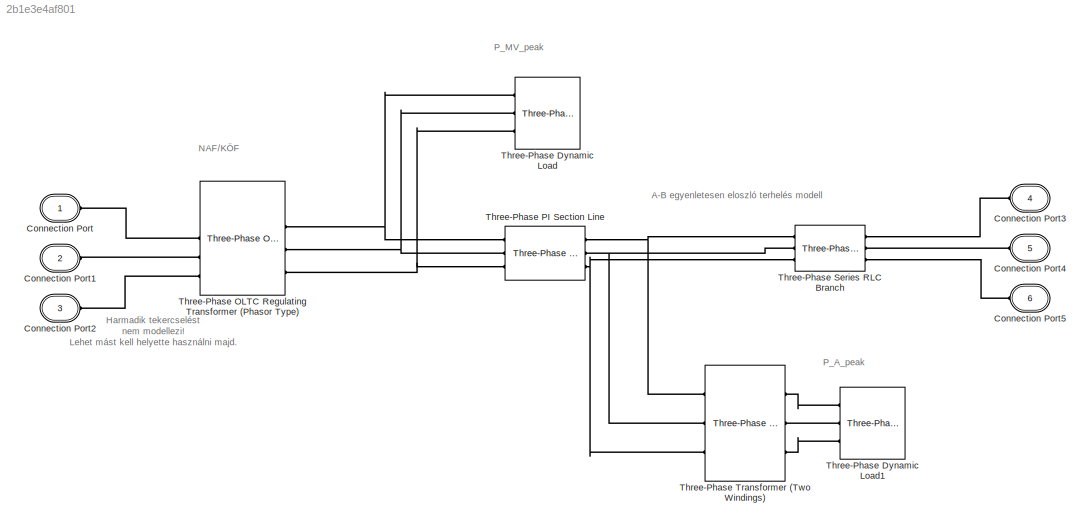
MODEL slx_2b1e3e4af801
KIND model
CONFIG AbsTol = auto
CONFIG EnableMultiTasking = off
CONFIG FixedStep = auto
CONFIG MaxStep = auto
CONFIG MinStep = auto
CONFIG RelTol = 1e-3
CONFIG SampleTimeConstraint = Unconstrained
CONFIG Solver = VariableStepAuto
CONFIG SolverName = VariableStepAuto
CONFIG StartTime = 0.0
CONFIG StopTime = 10.0
BLOCK [PMIOPort] Connection Port
  Side = Left
  Tag = PMCPort
BLOCK [PMIOPort] Connection Port1
  Port = 2
  Side = Left
  Tag = PMCPort
BLOCK [PMIOPort] Connection Port2
  Port = 3
  Side = Left
  Tag = PMCPort
BLOCK [PMIOPort] Connection Port3
  Port = 4
  Side = Left
  Tag = PMCPort
BLOCK [PMIOPort] Connection Port4
  Port = 5
  Side = Left
  Tag = PMCPort
BLOCK [PMIOPort] Connection Port5
  Port = 6
  Side = Left
  Tag = PMCPort
BLOCK [Reference] Three-Phase Dynamic Load  REF=powerlib/Elements/Three-Phase
Dynamic Load
  Ports = [0, 1, 0, 0, 0, 3]
  SourceBlock = powerlib/Elements/Three-Phase\nDynamic Load
  SourceProductBaseCode = PS
  SourceType = Three-Phase Dynamic Load
BLOCK [Reference] Three-Phase Dynamic Load1  REF=powerlib/Elements/Three-Phase
Dynamic Load
  Ports = [0, 1, 0, 0, 0, 3]
  SourceBlock = powerlib/Elements/Three-Phase\nDynamic Load
  SourceProductBaseCode = PS
  SourceType = Three-Phase Dynamic Load
BLOCK [Reference] Three-Phase OLTC Regulating Transformer (Phasor Type)  REF=factslib/Transformers/Three-Phase OLTC
Regulating Transformer
(Phasor Type)
  Ports = [2, 1, 0, 0, 0, 3, 3]
  SourceBlock = factslib/Transformers/Three-Phase OLTC\nRegulating Transformer\n(Phasor Type)
  SourceProductBaseCode = PS
  SourceType = Three-Phase OLTC Regulating Transformer (Phasor Type)
BLOCK [Reference] Three-Phase PI Section Line  REF=powerlib/Elements/Three-Phase
PI Section Line
  AttributesFormatString = \n
  Ports = [0, 0, 0, 0, 0, 3, 3]
  SourceBlock = powerlib/Elements/Three-Phase\nPI Section Line
  SourceProductBaseCode = PS
  SourceType = Three-Phase PI Section Line
BLOCK [Reference] Three-Phase Series RLC Branch  REF=powerlib/Elements/Three-Phase
Series RLC Branch
  AttributesFormatString = \n
  Ports = [0, 0, 0, 0, 0, 3, 3]
  SourceBlock = powerlib/Elements/Three-Phase\nSeries RLC Branch
  SourceProductBaseCode = PS
  SourceType = Three-Phase Series RLC Branch
BLOCK [Reference] Three-Phase Transformer (Two Windings)  REF=powerlib/Elements/Three-Phase
Transformer
(Two Windings)
  Ports = [0, 0, 0, 0, 0, 3, 3]
  SourceBlock = powerlib/Elements/Three-Phase\nTransformer\n(Two Windings)
  SourceProductBaseCode = PS
  SourceType = Three-Phase Transformer (Two Windings)
ANNOTATION (root): Harmadik tekercselést nem modellezi! Lehet mást kell helyette használni majd.
ANNOTATION (root): P_A_peak
ANNOTATION (root): A-B egyenletesen eloszló terhelés modell
ANNOTATION (root): NAF/KÖF
ANNOTATION (root): P_MV_peak
PLINE Connection Port1:RConn1 -- Three-Phase OLTC Regulating Transformer (Phasor Type):LConn2
PLINE Connection Port2:RConn1 -- Three-Phase OLTC Regulating Transformer (Phasor Type):LConn3
PLINE Connection Port3:RConn1 -- Three-Phase Series RLC Branch:RConn1
PLINE Connection Port4:RConn1 -- Three-Phase Series RLC Branch:RConn2
PLINE Connection Port5:RConn1 -- Three-Phase Series RLC Branch:RConn3
PLINE Connection Port:RConn1 -- Three-Phase OLTC Regulating Transformer (Phasor Type):LConn1
PLINE Three-Phase Dynamic Load1:LConn1 -- Three-Phase Transformer (Two Windings):RConn1
PLINE Three-Phase Dynamic Load1:LConn2 -- Three-Phase Transformer (Two Windings):RConn2
PLINE Three-Phase Dynamic Load1:LConn3 -- Three-Phase Transformer (Two Windings):RConn3
PNET net1: Three-Phase Dynamic Load:LConn1 -- Three-Phase OLTC Regulating Transformer (Phasor Type):RConn1 -- Three-Phase PI Section Line:LConn1
PNET net2: Three-Phase Dynamic Load:LConn2 -- Three-Phase OLTC Regulating Transformer (Phasor Type):RConn2 -- Three-Phase PI Section Line:LConn2
PNET net3: Three-Phase Dynamic Load:LConn3 -- Three-Phase OLTC Regulating Transformer (Phasor Type):RConn3 -- Three-Phase PI Section Line:LConn3
PNET net4: Three-Phase PI Section Line:RConn1 -- Three-Phase Series RLC Branch:LConn1 -- Three-Phase Transformer (Two Windings):LConn1
PNET net5: Three-Phase PI Section Line:RConn2 -- Three-Phase Series RLC Branch:LConn2 -- Three-Phase Transformer (Two Windings):LConn2
PNET net6: Three-Phase PI Section Line:RConn3 -- Three-Phase Series RLC Branch:LConn3 -- Three-Phase Transformer (Two Windings):LConn3
note: PNET lines group multi-terminal physical nets as a canonical sorted terminal list (undirected conserving connections); 2-terminal nets keep the pairwise PLINE form
